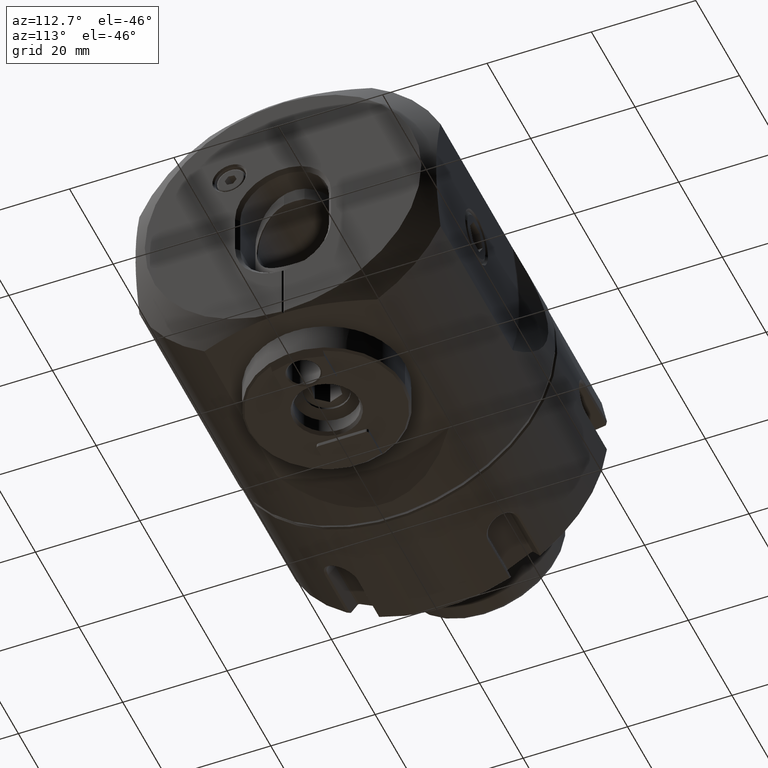
[diagram: clean part render]
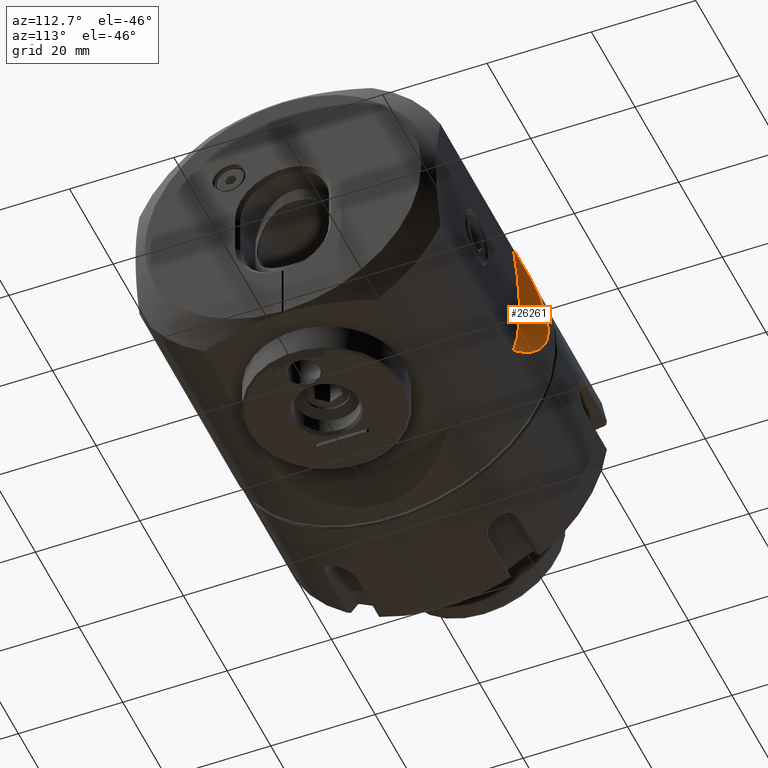
[diagram: same view with one face highlighted and labeled with its STEP entity id]
A machine part, auxiliary view. The second image highlights one B-rep face of the part: STEP entity #26261.
In plain terms, the highlighted conical surface has half-angle 67.649 deg.
Its self-contained STEP definition (entity closure, byte-faithful):
#418 = ORIENTED_EDGE ( 'NONE', *, *, #6112, .F. ) ;
#1822 = CARTESIAN_POINT ( 'NONE',  ( 10.91150384685639600, 29.39253423454522400, 11.36445375454000000 ) ) ;
#2069 = DIRECTION ( 'NONE',  ( -1.829058607746581800E-016, 1.000000000000000000, -0.0000000000000000000 ) ) ;
#2237 = CARTESIAN_POINT ( 'NONE',  ( 5.305144463647065900, 31.04052350081159900, 5.393701682717466600 ) ) ;
#2285 = DIRECTION ( 'NONE',  ( -1.000000000000000000, -2.192648732240159700E-016, 0.0000000000000000000 ) ) ;
#2502 = EDGE_LOOP ( 'NONE', ( #418, #9022 ) ) ;
#4190 = CARTESIAN_POINT ( 'NONE',  ( 4.407846332102442600, 31.31362705207583400, 3.483420215910586900 ) ) ;
#4501 = CARTESIAN_POINT ( 'NONE',  ( 4.184921065322448000, 31.38191308721002000, -2.745953857679616700 ) ) ;
#6112 = EDGE_CURVE ( 'NONE', #20097, #19443, #26961, .T. ) ;
#6457 = CARTESIAN_POINT ( 'NONE',  ( 8.807018485187754200, 29.99748307278226600, 9.655200006531881500 ) ) ;
#6671 = CARTESIAN_POINT ( 'NONE',  ( 4.970632359509330000, 31.14212064486691700, 4.779725650878297900 ) ) ;
#6779 = CARTESIAN_POINT ( 'NONE',  ( 3.801382551138503500, 31.49957517276132200, 0.3903465849789720700 ) ) ;
#6873 = CARTESIAN_POINT ( 'NONE',  ( 12.02815569985703300, 29.08021946721321200, -12.11494119685080600 ) ) ;
#8826 = CARTESIAN_POINT ( 'NONE',  ( 3.797435034210360000, 31.50078815696496900, -0.6728830309925012400 ) ) ;
#8926 = AXIS2_PLACEMENT_3D ( 'NONE', #14136, #2069, #2285 ) ;
#8941 = CARTESIAN_POINT ( 'NONE',  ( 8.750670097201137300, 30.01385753558014400, -9.605644569489506100 ) ) ;
#9022 = ORIENTED_EDGE ( 'NONE', *, *, #17896, .F. ) ;
#9041 = CARTESIAN_POINT ( 'NONE',  ( 6.066265984005377200, 30.81099268671860300, 6.558571790425003400 ) ) ;
#9142 = CARTESIAN_POINT ( 'NONE',  ( 4.092919178249325700, 31.41010480496752400, -2.402950308380625200 ) ) ;
#11198 = CARTESIAN_POINT ( 'NONE',  ( 7.757663562835158900, 30.30596103475175000, -8.659879342713622900 ) ) ;
#11394 = CARTESIAN_POINT ( 'NONE',  ( 3.960708523783361500, 31.45064580511162300, 1.795506370332139000 ) ) ;
#11500 = CARTESIAN_POINT ( 'NONE',  ( 5.826074066129184100, 30.88329550587579300, -6.209832631511853100 ) ) ;
#13789 = CARTESIAN_POINT ( 'NONE',  ( 13.18987613772493500, 28.76010011117380900, -12.84938292663352400 ) ) ;
#14136 = CARTESIAN_POINT ( 'NONE',  ( 42.10999999999998500, 28.76010011117380900, 0.0000000000000000000 ) ) ;
#15485 = CARTESIAN_POINT ( 'NONE',  ( 13.18987613772493500, 28.76010011117380900, -12.84938292663352400 ) ) ;
#16167 = CARTESIAN_POINT ( 'NONE',  ( 6.651610044728272400, 30.63557564052063900, -7.333906135432141800 ) ) ;
#16262 = CARTESIAN_POINT ( 'NONE',  ( 12.02668610211852900, 29.07827093111047700, 12.13723786207436300 ) ) ;
#16406 = FACE_OUTER_BOUND ( 'NONE', #2502, .T. ) ;
#16627 = B_SPLINE_CURVE_WITH_KNOTS ( 'NONE', 3,
 ( #18407, #16262, #1822, #6457, #23238, #18303, #20770, #9041, #18513, #2237, #6671, #4190, #22931, #11394, #27977, #20870, #6779, #8826, #18717, #9142, #4501, #23130, #27675, #27874, #20975, #11500, #30193, #25521, #16167, #11198, #8941, #30105, #25627, #6873, #20666, #13789 ),
 .UNSPECIFIED., .F., .F.,
 ( 4, 2, 2, 2, 2, 2, 2, 2, 2, 2, 2, 2, 2, 2, 2, 2, 2, 4 ),
 ( 0.001193195628430120600, 0.005359938938350651400, 0.009526682248271183000, 0.01056836807575131700, 0.01161005390323144700, 0.01369342555819171400, 0.01577679721315198100, 0.01681848304063211400, 0.01786016886811225100, 0.01994354052307251900, 0.02098522635055265200, 0.02202691217803278600, 0.02411028383299304900, 0.02515196966047318300, 0.02619365548795331600, 0.03036039879787385400, 0.03244377045283412100, 0.03452714210779439500 ),
 .UNSPECIFIED. ) ;
#17896 = EDGE_CURVE ( 'NONE', #19443, #20097, #16627, .T. ) ;
#18303 = CARTESIAN_POINT ( 'NONE',  ( 6.698685710990912600, 30.62151454724358900, 7.392417928992665000 ) ) ;
#18407 = CARTESIAN_POINT ( 'NONE',  ( 13.18987613772493500, 28.76010011117380900, 12.84938292663352400 ) ) ;
#18513 = CARTESIAN_POINT ( 'NONE',  ( 5.868206789703706700, 30.87060147092634600, 6.272558814780968100 ) ) ;
#18717 = CARTESIAN_POINT ( 'NONE',  ( 3.872475283969276600, 31.47770693832329400, -1.370905569101522200 ) ) ;
#19443 = VERTEX_POINT ( 'NONE', #20731 ) ;
#20097 = VERTEX_POINT ( 'NONE', #15485 ) ;
#20430 = AXIS2_PLACEMENT_3D ( 'NONE', #29754, #24933, #27913 ) ;
#20666 = CARTESIAN_POINT ( 'NONE',  ( 12.60363175661802700, 28.92045727527449700, -12.49046389375754500 ) ) ;
#20731 = CARTESIAN_POINT ( 'NONE',  ( 13.18987613772493500, 28.76010011117380900, 12.84938292663352400 ) ) ;
#20770 = CARTESIAN_POINT ( 'NONE',  ( 6.481129460746380700, 30.68656083508886600, 7.118083898464243800 ) ) ;
#20870 = CARTESIAN_POINT ( 'NONE',  ( 3.822573895270229700, 31.49306203170786800, 0.7484334303641038100 ) ) ;
#20975 = CARTESIAN_POINT ( 'NONE',  ( 5.266394476091926800, 31.05226699435980100, -5.326027128126693100 ) ) ;
#22931 = CARTESIAN_POINT ( 'NONE',  ( 4.187690216347277800, 31.38104958997391900, 2.819146212872464000 ) ) ;
#23130 = CARTESIAN_POINT ( 'NONE',  ( 4.401681426259923300, 31.31560885157965400, -3.420142373728714000 ) ) ;
#23238 = CARTESIAN_POINT ( 'NONE',  ( 7.816325846624320000, 30.28862739373117600, 8.720607012519526100 ) ) ;
#24933 = DIRECTION ( 'NONE',  ( -1.829058607746581800E-016, 1.000000000000000000, -0.0000000000000000000 ) ) ;
#25521 = CARTESIAN_POINT ( 'NONE',  ( 6.437319702737302600, 30.69967589255022500, -7.061351481155292700 ) ) ;
#25627 = CARTESIAN_POINT ( 'NONE',  ( 10.90184412402223700, 29.39677272043722000, -11.32522485813844600 ) ) ;
#26261 = ADVANCED_FACE ( 'NONE', ( #16406 ), #29626, .F. ) ;
#26961 = CIRCLE ( 'NONE', #8926, 31.64617205610485600 ) ;
#27675 = CARTESIAN_POINT ( 'NONE',  ( 4.525435968316848800, 31.27780375549745500, -3.748865768629102000 ) ) ;
#27874 = CARTESIAN_POINT ( 'NONE',  ( 4.937512671847870600, 31.15219358041607500, -4.712838253401032200 ) ) ;
#27913 = DIRECTION ( 'NONE',  ( -1.000000000000000000, -1.811248735031905000E-016, 0.0000000000000000000 ) ) ;
#27977 = CARTESIAN_POINT ( 'NONE',  ( 3.902301951499003200, 31.46857723697374400, 1.449743223230802500 ) ) ;
#29626 = CONICAL_SURFACE ( 'NONE', #20430, 38.31000000000000200, 1.180706384329099900 ) ;
#29754 = CARTESIAN_POINT ( 'NONE',  ( 42.10999999999998500, 31.50000000000000000, 0.0000000000000000000 ) ) ;
#30105 = CARTESIAN_POINT ( 'NONE',  ( 10.34965956628881400, 29.55395707969063700, -10.90990989294456700 ) ) ;
#30193 = CARTESIAN_POINT ( 'NONE',  ( 6.024532769846516100, 30.82354069590566300, -6.499394096059319300 ) ) ;